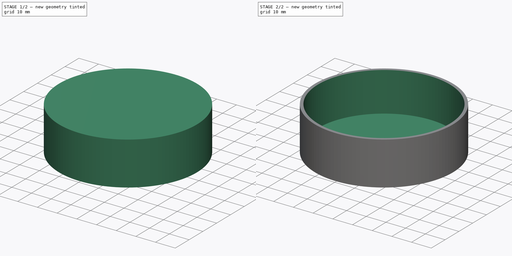
[diagram: build sequence overview — one tinted view per stage of 2, left to right]
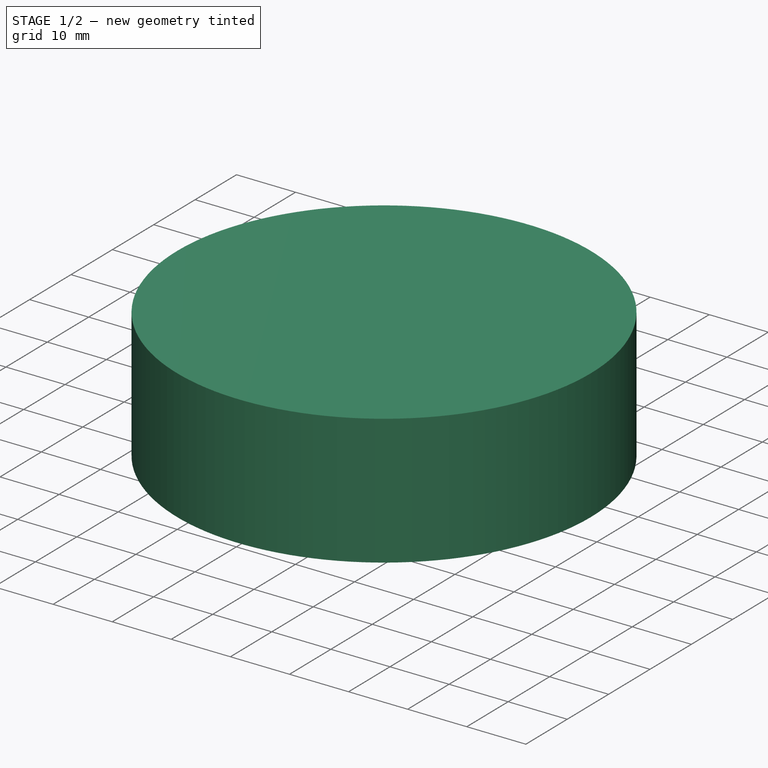
[diagram: stage 1 of 2 — iso view after this stage's code; geometry added in this stage tinted green]
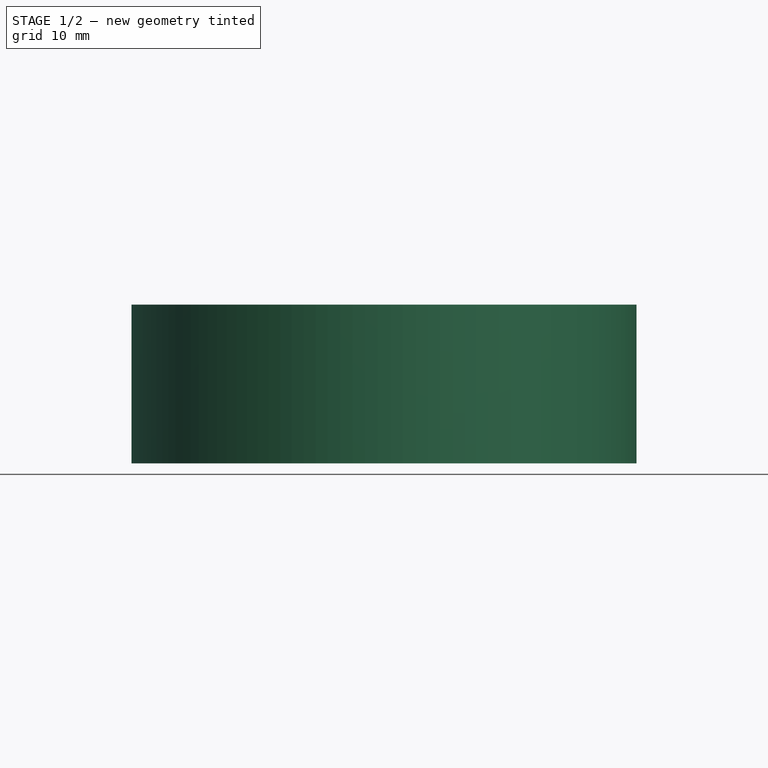
[diagram: stage 1 of 2 — front view after this stage's code; geometry added in this stage tinted green]
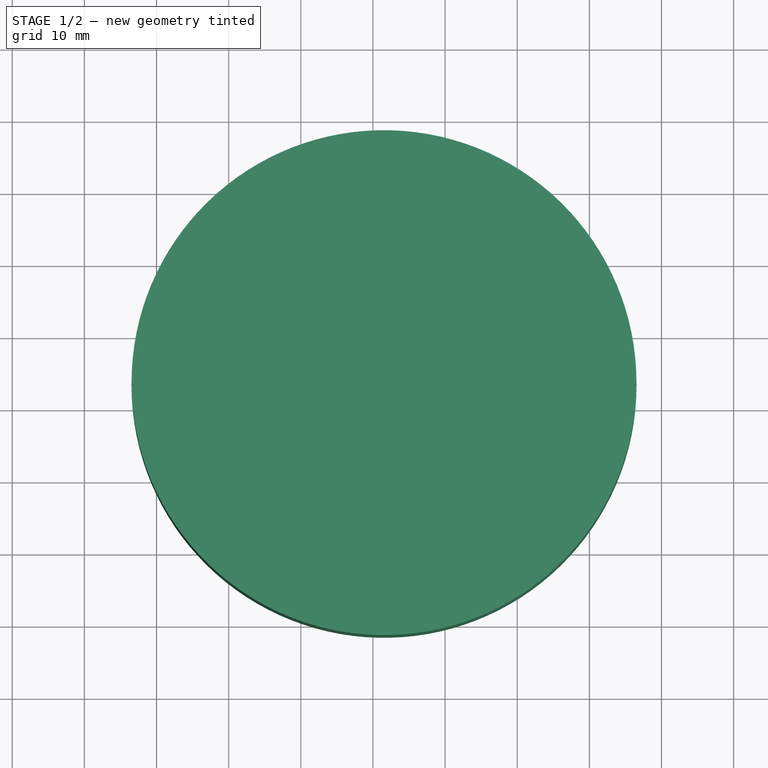
[diagram: stage 1 of 2 — top view after this stage's code; geometry added in this stage tinted green]
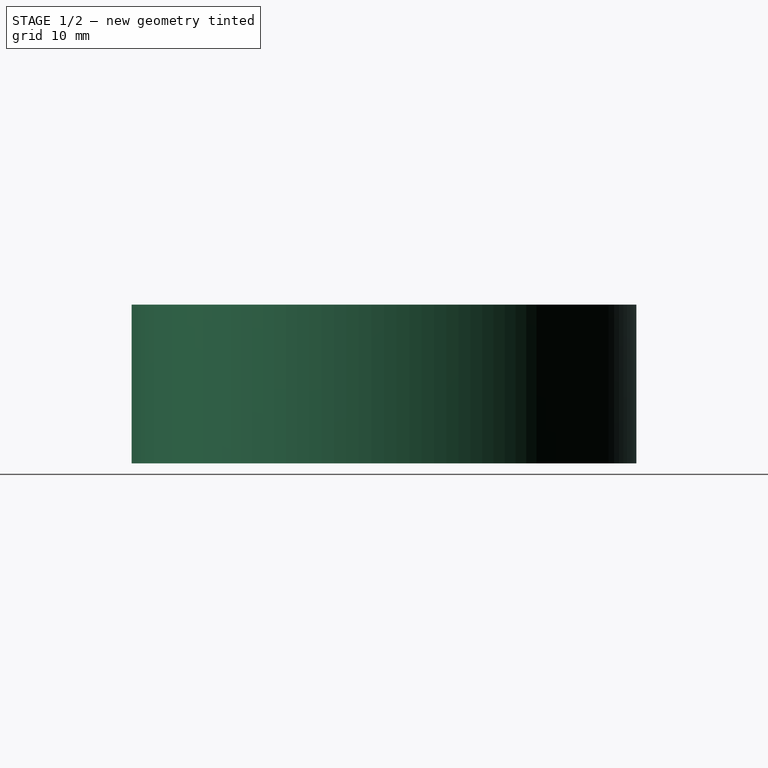
[diagram: stage 1 of 2 — right view after this stage's code; geometry added in this stage tinted green]
FCSTD DOCUMENT  (FreeCAD 1.0R39319 (Git))
Label: turn-taker
License: All rights reserved
LicenseURL: https://en.wikipedia.org/wiki/All_rights_reserved
objects: Part::Feature×7, App::Part×2, Sketcher::SketchObject×2, PartDesign::ShapeBinder×1, PartDesign::Pad×1, PartDesign::Pocket×1, PartDesign::Body×1
note: 19 computed .brp shape members not serialized (recipe doc carries the construction recipe); baked Part::Feature solids carry a one-line shape summary decoded from their .brp

FEATURE [Part::Feature] Part__Feature  label="RaspberryPi_Pico_Module_KiCad"
  shape: bbox 21 x 52.3 x 3.7 mm, 473 faces (baked)
FEATURE [App::Part] RaspberryPi_Pico
  Group = -> [Part__Feature]
  Origin = -> Origin
  Placement = pos=(181.275,-83,1.595) rot=(0,0,1;0rad)
FEATURE [Part::Feature] Part__Feature001  label="PinHeader_1x04_P2.54mm_Vertical"
  Placement = pos=(199.5,-64.38,1.595) rot=(0,0,1;0rad)
  shape: bbox 2.54 x 10.16 x 11.54 mm, 100 faces (baked)
FEATURE [Part::Feature] Part__Feature002  label="SW_PUSH_6mm"
  Placement = pos=(158.5,-84,1.595) rot=(0,0,1;0rad)
  shape: bbox 7.174 x 6 x 7.8 mm, 105 faces (baked)
FEATURE [Part::Feature] Part__Feature003  label="JST_PH_B4B-PH-K_1x04_P2.00mm_Vertical"
  Placement = pos=(163,-69,1.595) rot=(0,0,-1;1.5708rad)
  shape: bbox 4.55 x 9.9 x 9.4 mm, 149 faces (baked)
FEATURE [Part::Feature] Part__Feature004  label="JST_PH_S3B-PH-K_1x03_P2.00mm_Horizontal"
  Placement = pos=(199,-98.5,1.595) rot=(0,0,1;0rad)
  shape: bbox 7.9 x 7.6 x 8.25 mm, 142 faces (baked)
FEATURE [Part::Feature] Part__Feature005  label="SW_PUSH_6mm001"
  Placement = pos=(158.5,-98.5,1.595) rot=(0,0,1;0rad)
  shape: bbox 7.174 x 6 x 7.8 mm, 105 faces (baked)
FEATURE [Part::Feature] Part__Feature006  label="turn-taker_PCB"
  shape: bbox 65.07 x 65.07 x 1.51 mm, 78 faces (baked)
FEATURE [App::Part] turn_taker_1  label="turn-taker 1"
  Group = -> [RaspberryPi_Pico,Part__Feature001,Part__Feature002,Part__Feature003,Part__Feature004,Part__Feature005,Part__Feature006]
  Origin = -> Origin001
FEATURE [PartDesign::ShapeBinder] ShapeBinder
  Support = -> [Part__Feature006]
  TraceSupport = false
FEATURE [Sketcher::SketchObject] Sketch001  label="Wall"
  ArcFitTolerance = 1e-06
  AttachmentSupport = -> [XY_Plane002]
  ExternalGeometry = -> [ShapeBinder]
  FullyConstrained = true
  MakeInternals = false
  MapMode = 5
  sketch-geometry (1):
    g0: Circle CenterX=181.534 CenterY=-86.5 CenterZ=0 NormalX=0 NormalY=0 NormalZ=1 AngleXU=0 Radius=35
  constraints (2):
    c: Coincident(g0,g-3)
    c: Diameter(g0) = 70
FEATURE [PartDesign::Pad] Pad
  Direction = (0,0,1)
  Length = 22
  Length2 = 10
  Profile = -> Sketch001
  ReferenceAxis = -> Sketch001 [N_Axis]
  Refine = true
  Suppressed = false
  Type = 0
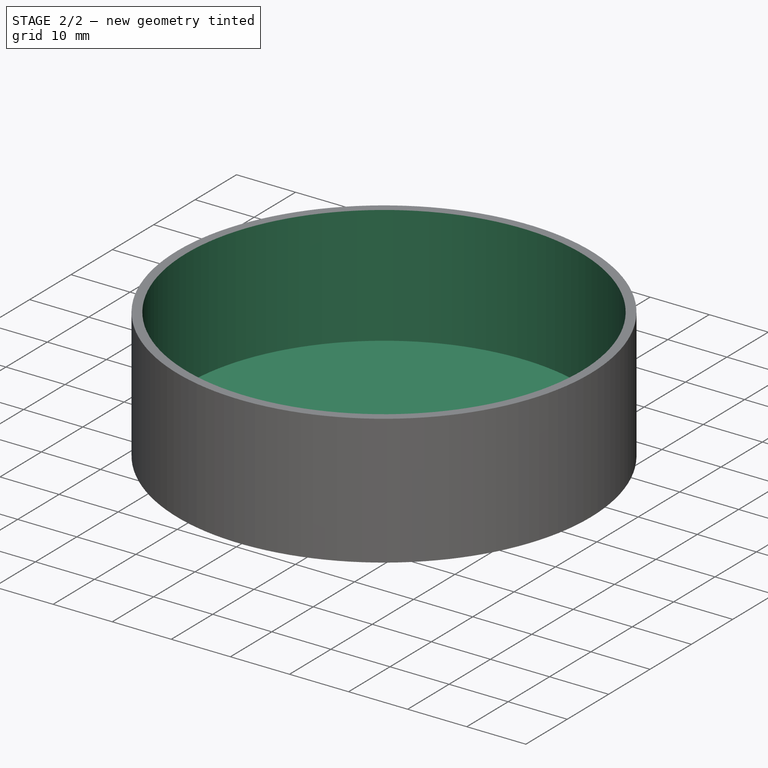
[diagram: stage 2 of 2 — iso view after this stage's code; geometry added in this stage tinted green]
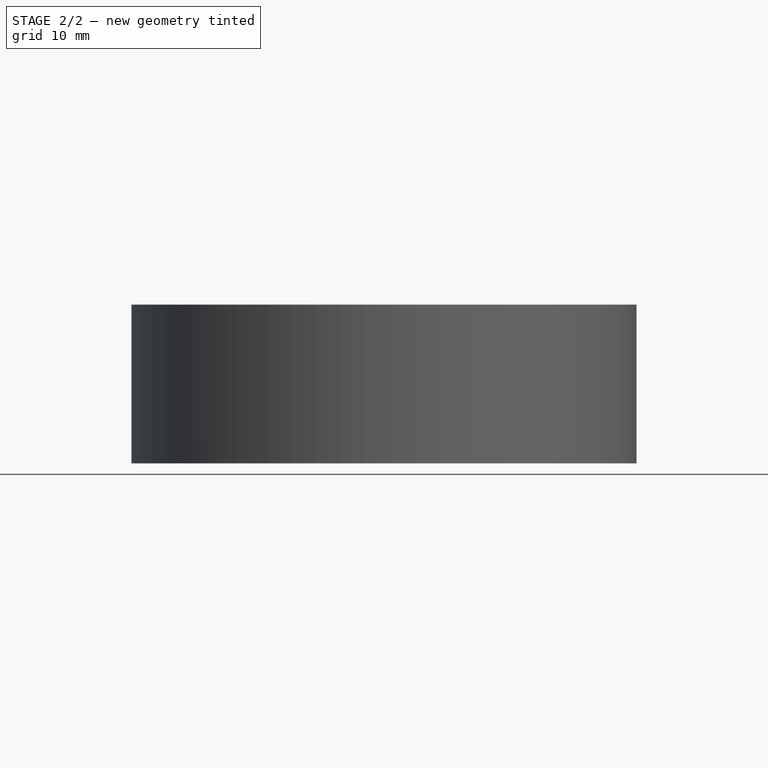
[diagram: stage 2 of 2 — front view after this stage's code; geometry added in this stage tinted green]
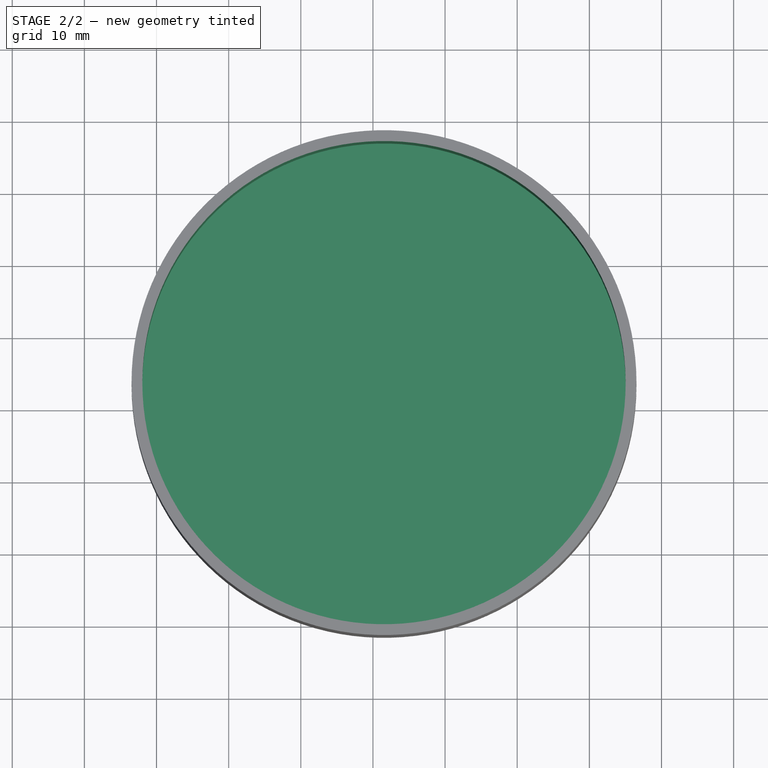
[diagram: stage 2 of 2 — top view after this stage's code; geometry added in this stage tinted green]
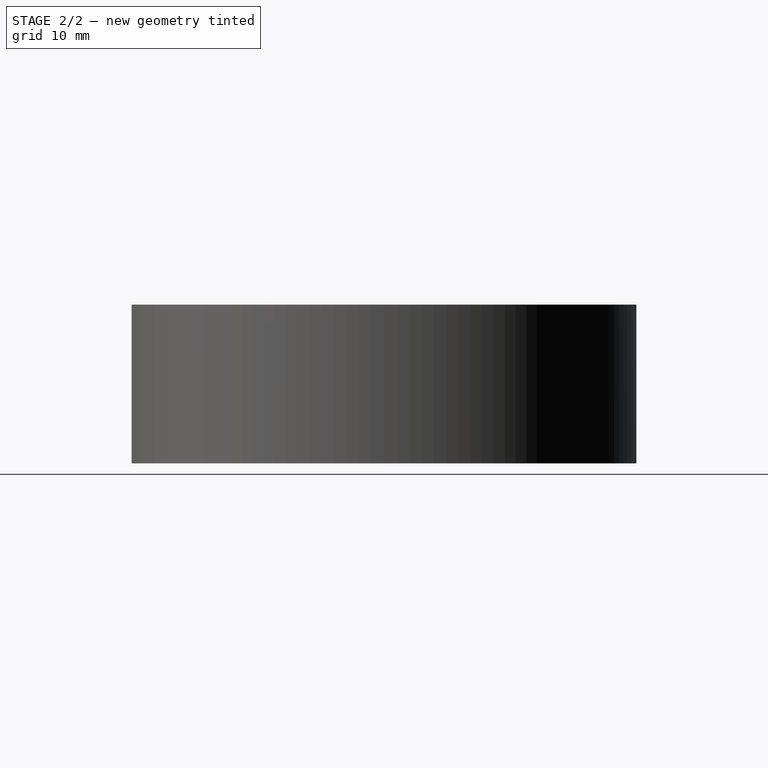
[diagram: stage 2 of 2 — right view after this stage's code; geometry added in this stage tinted green]
FEATURE [Sketcher::SketchObject] Sketch
  ArcFitTolerance = 1e-06
  AttachmentSupport = -> [Pad]
  ExternalGeometry = -> [ShapeBinder]
  FullyConstrained = true
  MakeInternals = false
  MapMode = 5
  Placement = pos=(0,0,22) rot=(0,0,1;0rad)
  sketch-geometry (1):
    g0: Circle CenterX=181.534 CenterY=-86.5 CenterZ=0 NormalX=0 NormalY=0 NormalZ=1 AngleXU=0 Radius=33.5
  constraints (2):
    c: Coincident(g0,g-3)
    c: Diameter(g0) = 67
FEATURE [PartDesign::Pocket] Pocket
  BaseFeature = -> Pad
  Direction = (0,0,-1)
  Length = 20
  Length2 = 5
  Profile = -> Sketch
  ReferenceAxis = -> Sketch [N_Axis]
  Refine = true
  Suppressed = false
  Type = 0
FEATURE [PartDesign::Body] Body  label="base"
  AllowCompound = false
  Group = -> [ShapeBinder,Sketch001,Pad,Sketch,Pocket]
  Origin = -> Origin002
  Tip = -> Pocket
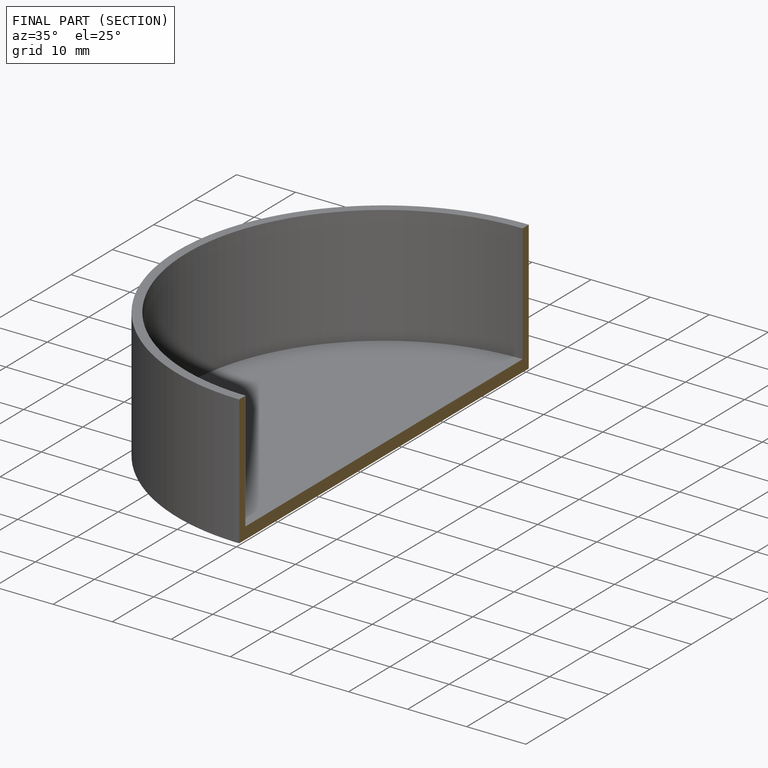
[diagram: finished part — half-section view (interior)]
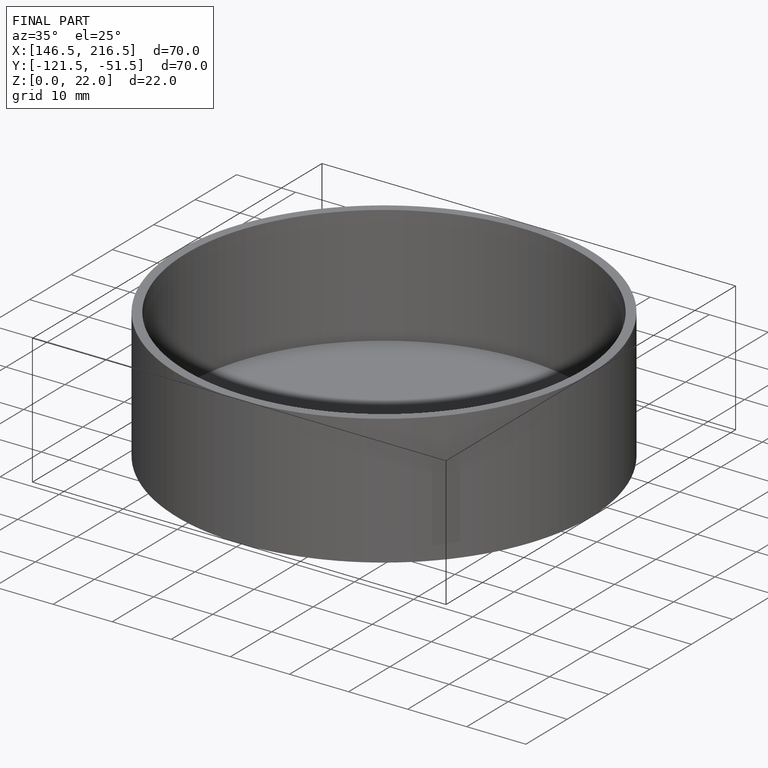
[diagram: finished part — iso view with bounding-box wireframe]
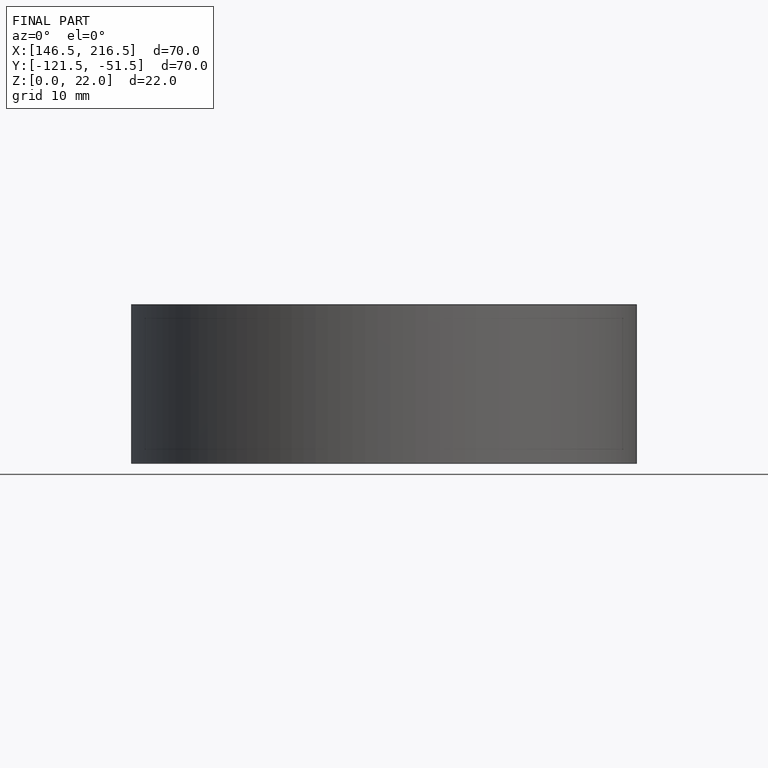
[diagram: finished part — front view with bounding-box wireframe]
